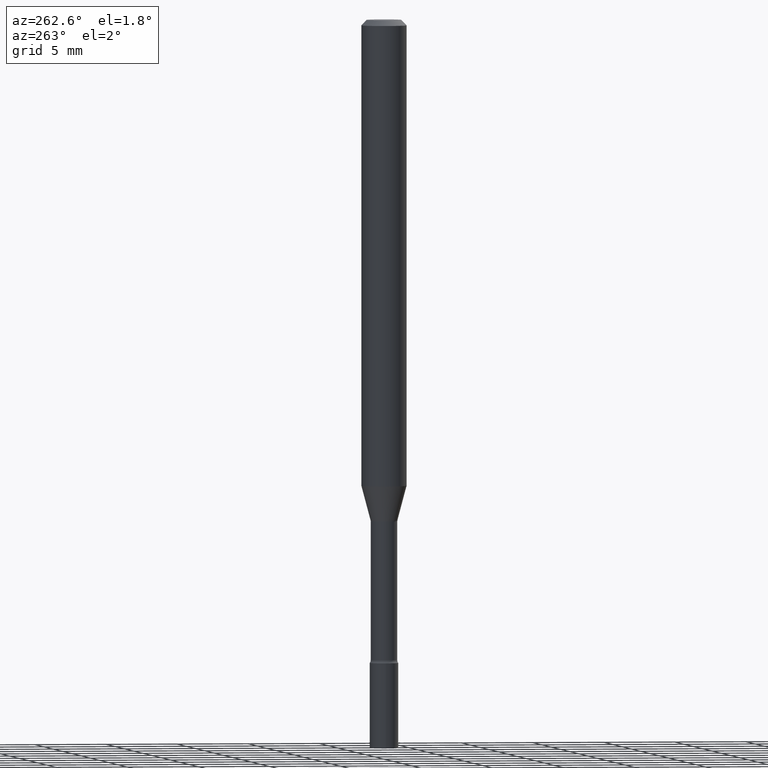
[diagram: clean part render]
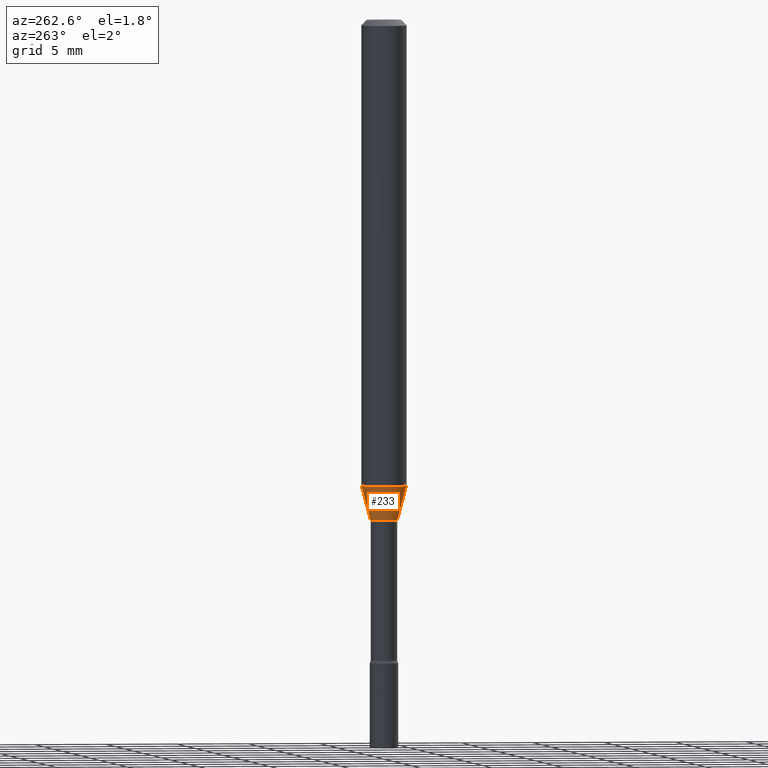
[diagram: same view with one face highlighted and labeled with its STEP entity id]
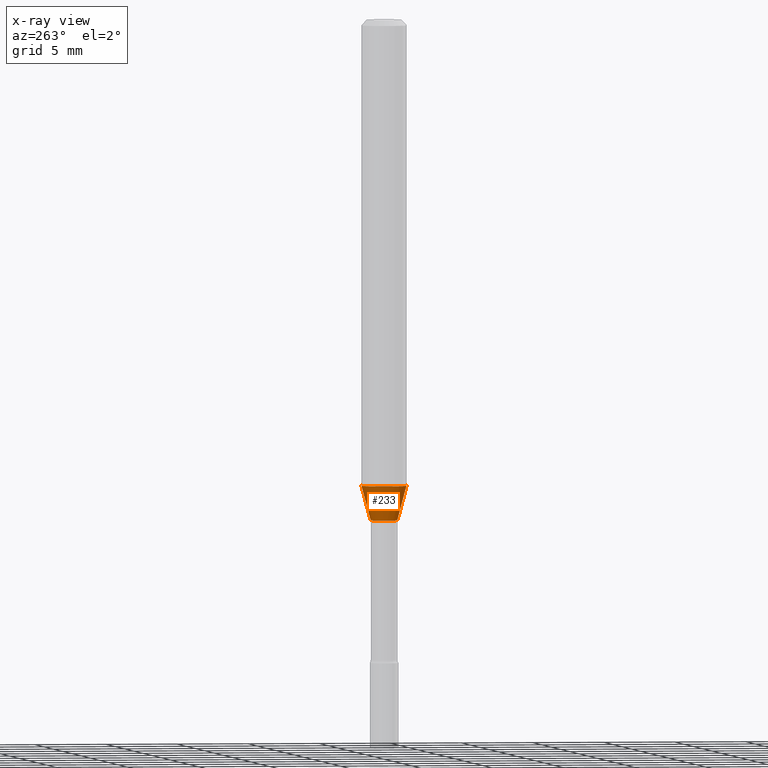
[diagram: x-ray of the same camera — body ghosted, the highlighted face saturated]
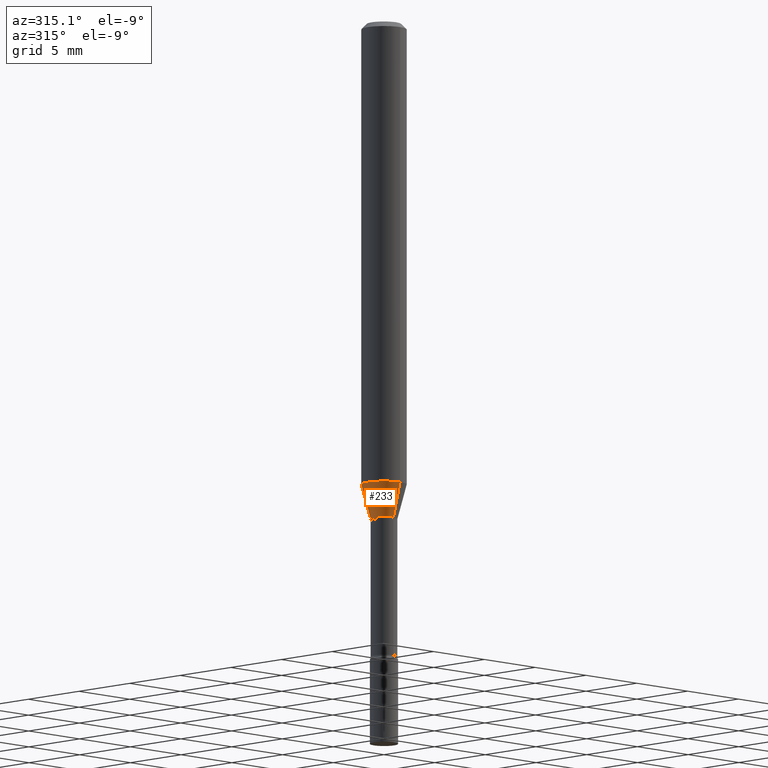
[diagram: same view with one face highlighted and labeled with its STEP entity id]
A machine part, auxiliary view. The second image highlights one B-rep face of the part: STEP entity #233.
The next image is the same camera in x-ray: the body ghosted, the highlighted face saturated — about 0% of this face is hidden behind the body in this view.
A second angle (auxiliary view) of the same face is appended — the face is thin or edge-on in the first view.
In plain terms, the highlighted conical surface has half-angle 15 deg.
Its self-contained STEP definition (entity closure, byte-faithful):
#11 = VECTOR ( 'NONE', #376, 39.37007874015748143 ) ;
#23 = AXIS2_PLACEMENT_3D ( 'NONE', #257, #32, #263 ) ;
#25 = VERTEX_POINT ( 'NONE', #186 ) ;
#28 = AXIS2_PLACEMENT_3D ( 'NONE', #51, #173, #95 ) ;
#32 = DIRECTION ( 'NONE',  ( -2.445452147771860256E-29, 3.491505194639095236E-15, 1.000000000000000000 ) ) ;
#51 = CARTESIAN_POINT ( 'NONE',  ( 3.360277459732895560E-29, -4.797651107904894266E-15, -1.374092501787273157 ) ) ;
#57 = CARTESIAN_POINT ( 'NONE',  ( 3.360277459732895560E-29, -4.797651107904894266E-15, -1.374092501787273157 ) ) ;
#80 = ORIENTED_EDGE ( 'NONE', *, *, #148, .T. ) ;
#84 = CIRCLE ( 'NONE', #202, 0.03716111260566398039 ) ;
#90 = FACE_OUTER_BOUND ( 'NONE', #239, .T. ) ;
#91 = CARTESIAN_POINT ( 'NONE',  ( -2.594946623866146070E-16, -0.03716111260566878211, -1.374092501787273157 ) ) ;
#94 = LINE ( 'NONE', #510, #11 ) ;
#95 = DIRECTION ( 'NONE',  ( -6.982962677686265133E-15, -1.000000000000000000, 0.000000000000000000 ) ) ;
#148 = EDGE_CURVE ( 'NONE', #151, #269, #84, .T. ) ;
#151 = VERTEX_POINT ( 'NONE', #404 ) ;
#173 = DIRECTION ( 'NONE',  ( -2.445452147771860256E-29, 3.491505194639095236E-15, 1.000000000000000000 ) ) ;
#186 = CARTESIAN_POINT ( 'NONE',  ( 4.440892098500935790E-16, 0.06249999999999550360, -1.279526486624345205 ) ) ;
#189 = ORIENTED_EDGE ( 'NONE', *, *, #445, .F. ) ;
#202 = AXIS2_PLACEMENT_3D ( 'NONE', #57, #341, #272 ) ;
#214 = CIRCLE ( 'NONE', #23, 0.06250000000000000000 ) ;
#233 = ADVANCED_FACE ( 'NONE', ( #90 ), #248, .T. ) ;
#239 = EDGE_LOOP ( 'NONE', ( #189, #80, #345, #389 ) ) ;
#248 = CONICAL_SURFACE ( 'NONE', #28, 0.03716111260566398039, 0.2617993877991502405 ) ;
#257 = CARTESIAN_POINT ( 'NONE',  ( 3.129020794846486150E-29, -4.467473374727209710E-15, -1.279526486624344761 ) ) ;
#263 = DIRECTION ( 'NONE',  ( -6.982962677686265922E-15, -1.000000000000000000, 4.370956789862821150E-15 ) ) ;
#269 = VERTEX_POINT ( 'NONE', #334 ) ;
#272 = DIRECTION ( 'NONE',  ( -6.982962677686265133E-15, -1.000000000000000000, 0.000000000000000000 ) ) ;
#296 = LINE ( 'NONE', #91, #494 ) ;
#313 = DIRECTION ( 'NONE',  ( -1.807323732225329745E-15, -0.2588190451025181305, 0.9659258262890689783 ) ) ;
#330 = EDGE_CURVE ( 'NONE', #269, #352, #296, .T. ) ;
#334 = CARTESIAN_POINT ( 'NONE',  ( -2.594946623866146070E-16, -0.03716111260566878211, -1.374092501787273157 ) ) ;
#341 = DIRECTION ( 'NONE',  ( -2.445452147771860256E-29, 3.491505194639095236E-15, 1.000000000000000000 ) ) ;
#345 = ORIENTED_EDGE ( 'NONE', *, *, #330, .T. ) ;
#352 = VERTEX_POINT ( 'NONE', #483 ) ;
#376 = DIRECTION ( 'NONE',  ( 1.839019923739599921E-15, 0.2588190451025249028, 0.9659258262890670910 ) ) ;
#388 = EDGE_CURVE ( 'NONE', #25, #352, #214, .T. ) ;
#389 = ORIENTED_EDGE ( 'NONE', *, *, #388, .F. ) ;
#404 = CARTESIAN_POINT ( 'NONE',  ( 3.540673979986519232E-16, 0.03716111260565918561, -1.374092501787273157 ) ) ;
#445 = EDGE_CURVE ( 'NONE', #151, #25, #94, .T. ) ;
#483 = CARTESIAN_POINT ( 'NONE',  ( -4.364351673553605587E-16, -0.06250000000000449640, -1.279526486624344539 ) ) ;
#494 = VECTOR ( 'NONE', #313, 39.37007874015748143 ) ;
#510 = CARTESIAN_POINT ( 'NONE',  ( 2.640455861472098731E-16, 0.03716111260565918561, -1.374092501787273157 ) ) ;